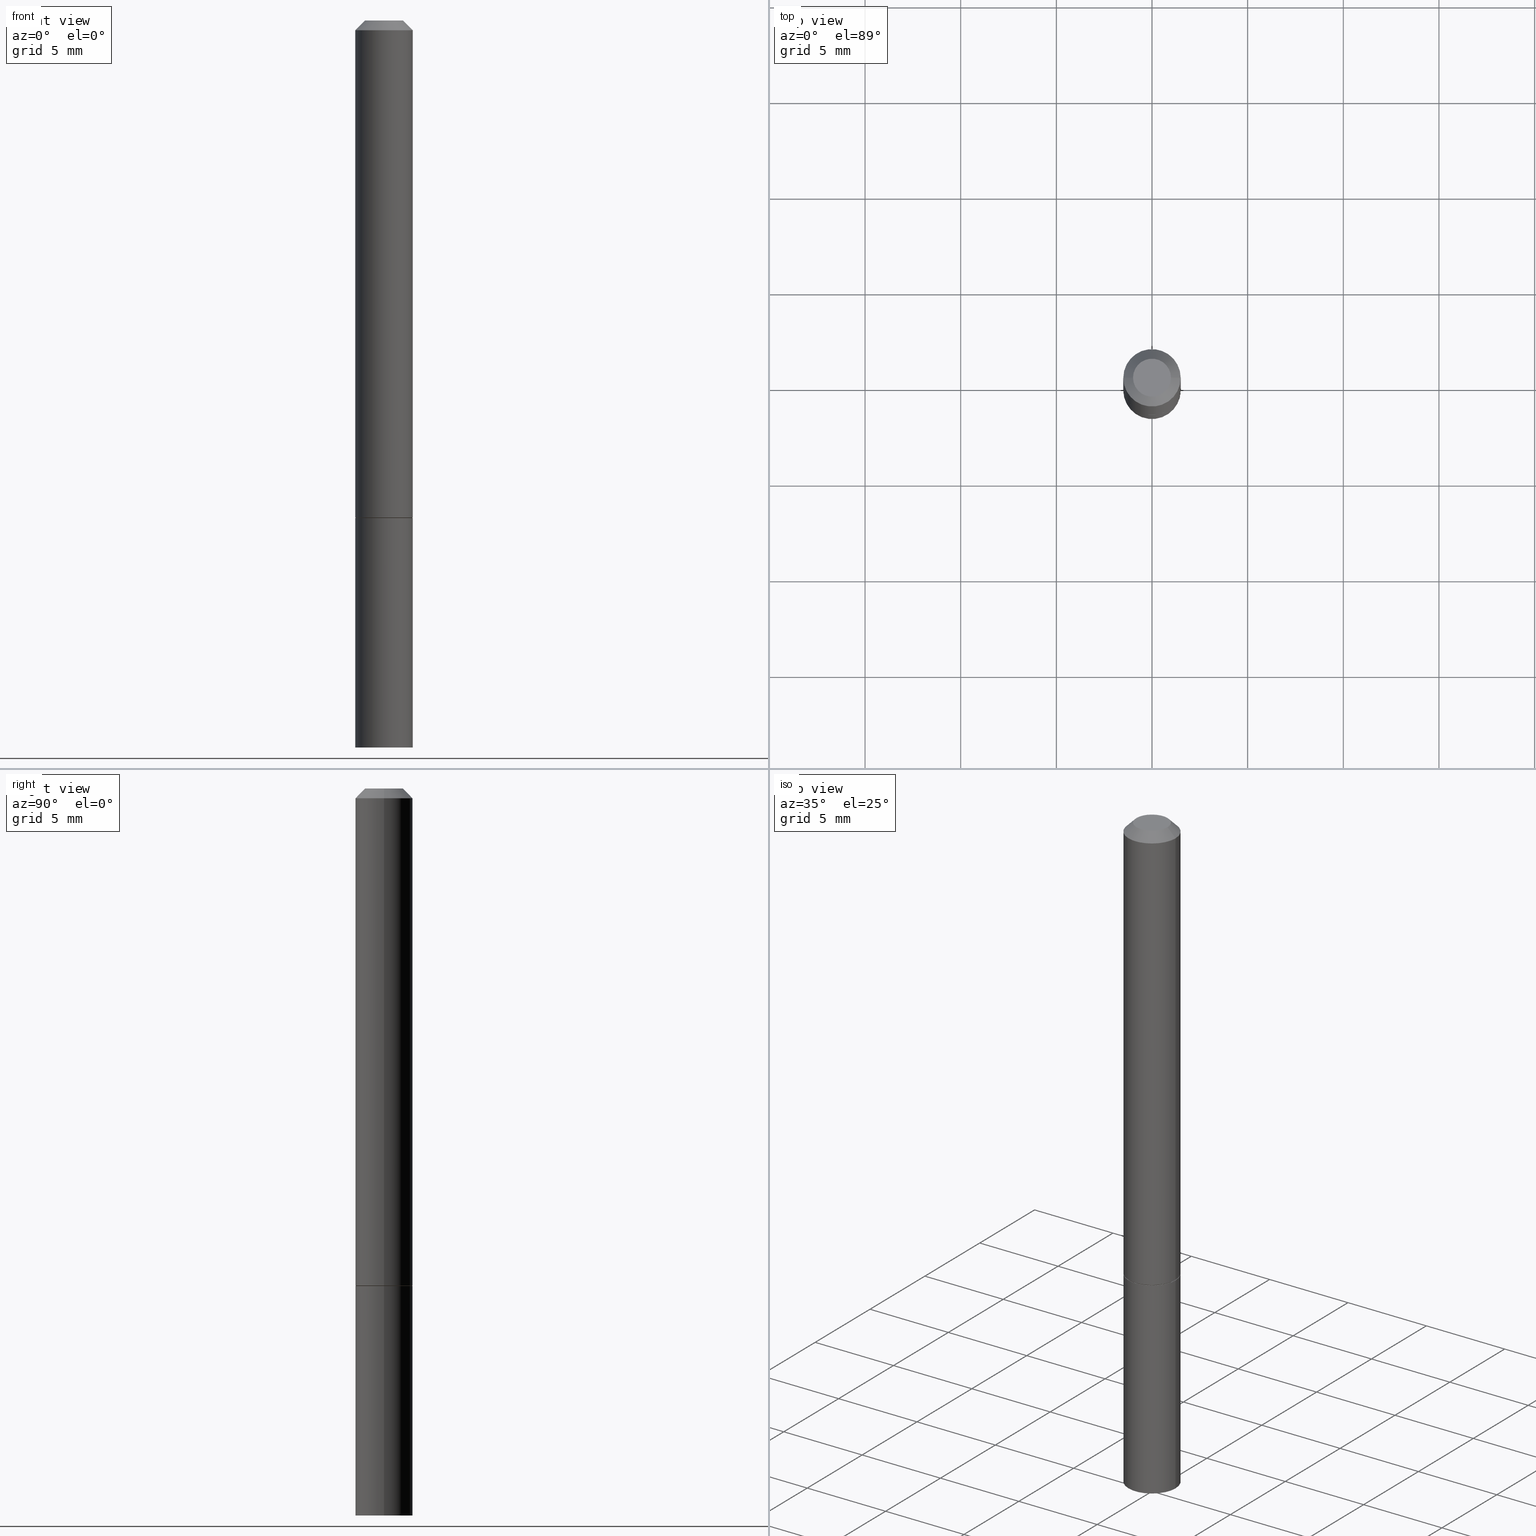
[diagram: canonical four-view strip — front | top / right | iso, engineering-drawing reading convention]
A machine part, canonical four-view strip (front | top / right | iso — engineering-drawing reading convention). The complete STEP part file that produces these views, byte-faithful:
ISO-10303-21;
HEADER;
FILE_DESCRIPTION (( 'STEP AP203' ),
    '1' );
FILE_NAME ('48632.STEP',
    '2024-02-28T12:39:26',
    ( '' ),
    ( '' ),
    'SwSTEP 2.0',
    'SolidWorks 2023',
    '' );
FILE_SCHEMA (( 'CONFIG_CONTROL_DESIGN' ));
ENDSEC;

DATA;
#1 = PERSON_AND_ORGANIZATION_ROLE ( 'creator' ) ;
#2 = CARTESIAN_POINT ( 'NONE',  ( 4.890937612370292426E-31, -6.982962677686317493E-17, -0.02000000000000007674 ) ) ;
#3 = CC_DESIGN_APPROVAL ( #173, ( #181 ) ) ;
#4 = FACE_OUTER_BOUND ( 'NONE', #196, .T. ) ;
#5 = CC_DESIGN_PERSON_AND_ORGANIZATION_ASSIGNMENT ( #338, #50, ( #136 ) ) ;
#6 = CARTESIAN_POINT ( 'NONE',  ( 2.503426416891723784E-29, -3.574229446573727613E-15, -1.023699999999999832 ) ) ;
#7 = CIRCLE ( 'NONE', #202, 0.05904999999999981097 ) ;
#8 = CARTESIAN_POINT ( 'NONE',  ( 2.503426416891723784E-29, -3.574229446573727613E-15, -1.023699999999999832 ) ) ;
#9 = ORIENTED_EDGE ( 'NONE', *, *, #68, .F. ) ;
#10 = DIRECTION ( 'NONE',  ( -2.438088387897960049E-29, 3.491481338843145188E-15, 1.000000000000000000 ) ) ;
#11 = VECTOR ( 'NONE', #103, 39.37007874015748143 ) ;
#12 = ORIENTED_EDGE ( 'NONE', *, *, #264, .T. ) ;
#13 = APPLICATION_PROTOCOL_DEFINITION ( 'international standard', 'config_control_design', 1994, #346 ) ;
#14 = ORIENTED_EDGE ( 'NONE', *, *, #39, .F. ) ;
#15 = CARTESIAN_POINT ( 'NONE',  ( 0.000000000000000000, 0.000000000000000000, 0.000000000000000000 ) ) ;
#16 = ADVANCED_BREP_SHAPE_REPRESENTATION ( '48632', ( #21, #137, #121 ), #222 ) ;
#17 = LENGTH_MEASURE_WITH_UNIT ( LENGTH_MEASURE( 0.02539999999999999897 ), #200 );
#18 = FACE_OUTER_BOUND ( 'NONE', #320, .T. ) ;
#19 = PERSON ( 'UNSPECIFIED', 'UNSPECIFIED', 'UNSPECIFIED', ('UNSPECIFIED'), ('UNSPECIFIED'), ('UNSPECIFIED') ) ;
#20 = CARTESIAN_POINT ( 'NONE',  ( 0.05805000000000001131, -3.979590430013415730E-15, -1.023699999999999832 ) ) ;
#21 = MANIFOLD_SOLID_BREP ( 'Body-Move/Copy2[1]', #114 ) ;
#22 = DATE_AND_TIME ( #75, #217 ) ;
#23 = CARTESIAN_POINT ( 'NONE',  ( 0.05905000000000001914, -5.635949177160603791E-15, -1.496099999999999985 ) ) ;
#24 = APPROVAL_DATE_TIME ( #28, #247 ) ;
#25 = DIRECTION ( 'NONE',  ( 2.445468806185136597E-29, -3.491481338843145583E-15, -1.000000000000000000 ) ) ;
#26 = AXIS2_PLACEMENT_3D ( 'NONE', #347, #57, #139 ) ;
#27 = FACE_OUTER_BOUND ( 'NONE', #172, .T. ) ;
#28 = DATE_AND_TIME ( #245, #153 ) ;
#29 = CARTESIAN_POINT ( 'NONE',  ( -0.03904999999999982097, 3.075995059520783951E-16, -5.549066237130737733E-17 ) ) ;
#30 = ADVANCED_FACE ( 'NONE', ( #239 ), #294, .T. ) ;
#31 = CARTESIAN_POINT ( 'NONE',  ( 2.503426416891723784E-29, -3.574229446573727613E-15, -1.023699999999999832 ) ) ;
#32 = CIRCLE ( 'NONE', #255, 0.05805000000000001131 ) ;
#33 = ADVANCED_FACE ( 'NONE', ( #48 ), #305, .T. ) ;
#34 = DIRECTION ( 'NONE',  ( -1.000000000000000000, 6.982962677686265922E-15, -4.876176775795935793E-29 ) ) ;
#35 = AXIS2_PLACEMENT_3D ( 'NONE', #192, #254, #312 ) ;
#36 = EDGE_LOOP ( 'NONE', ( #194, #64, #12, #92 ) ) ;
#37 =( CONVERSION_BASED_UNIT ( 'INCH', #17 ) LENGTH_UNIT ( ) NAMED_UNIT ( #278 ) );
#38 = ORIENTED_EDGE ( 'NONE', *, *, #129, .T. ) ;
#39 = EDGE_CURVE ( 'NONE', #353, #299, #7, .T. ) ;
#40 = VERTEX_POINT ( 'NONE', #118 ) ;
#41 = CARTESIAN_POINT ( 'NONE',  ( 0.05904999999999988036, -4.123439461173731945E-16, 2.879382386107493914E-30 ) ) ;
#42 = APPROVAL_PERSON_ORGANIZATION ( #259, #171, #66 ) ;
#43 = CARTESIAN_POINT ( 'NONE',  ( -0.05904999999999981097, 3.425143193405095019E-16, -0.02000000000000007674 ) ) ;
#44 = ORIENTED_EDGE ( 'NONE', *, *, #289, .T. ) ;
#45 = FACE_OUTER_BOUND ( 'NONE', #313, .T. ) ;
#46 = DIRECTION ( 'NONE',  ( 1.000000000000000000, -6.982962677686266711E-15, 4.876176775795935232E-29 ) ) ;
#47 = PERSON_AND_ORGANIZATION_ROLE ( 'design_supplier' ) ;
#48 = FACE_OUTER_BOUND ( 'NONE', #295, .T. ) ;
#49 = CARTESIAN_POINT ( 'NONE',  ( 2.503426416891723784E-29, -3.574229446573727613E-15, -1.023699999999999832 ) ) ;
#50 = PERSON_AND_ORGANIZATION_ROLE ( 'classification_officer' ) ;
#51 = CC_DESIGN_PERSON_AND_ORGANIZATION_ASSIGNMENT ( #100, #238, ( #241 ) ) ;
#52 = DIRECTION ( 'NONE',  ( 0.7071067811864992780, -2.468850131081751401E-15, 0.7071067811865957564 ) ) ;
#53 = DIRECTION ( 'NONE',  ( -0.7071067811864992780, 7.493145998870180611E-15, 0.7071067811865957564 ) ) ;
#54 = APPROVAL_DATE_TIME ( #215, #173 ) ;
#55 = CARTESIAN_POINT ( 'NONE',  ( 1.357006838635785746E-45, -1.937446121494581442E-31, -5.549066237130534971E-17 ) ) ;
#56 = FACE_OUTER_BOUND ( 'NONE', #185, .T. ) ;
#57 = DIRECTION ( 'NONE',  ( -2.445468806185136597E-29, 3.491481338843145583E-15, 1.000000000000000000 ) ) ;
#58 = AXIS2_PLACEMENT_3D ( 'NONE', #62, #284, #34 ) ;
#59 = VERTEX_POINT ( 'NONE', #23 ) ;
#60 = AXIS2_PLACEMENT_3D ( 'NONE', #8, #10, #226 ) ;
#61 = LOCAL_TIME ( 7, 39, 26.00000000000000000, #124 ) ;
#62 = CARTESIAN_POINT ( 'NONE',  ( 2.726846925636474363E-16, 0.03904999999999982097, -1.640876774674768860E-16 ) ) ;
#63 = VERTEX_POINT ( 'NONE', #272 ) ;
#64 = ORIENTED_EDGE ( 'NONE', *, *, #68, .T. ) ;
#65 = EDGE_LOOP ( 'NONE', ( #242, #87, #122, #237 ) ) ;
#66 = APPROVAL_ROLE ( '' ) ;
#67 = CIRCLE ( 'NONE', #279, 0.05904999999999981097 ) ;
#68 = EDGE_CURVE ( 'NONE', #63, #59, #331, .T. ) ;
#69 = VERTEX_POINT ( 'NONE', #20 ) ;
#70 = DIRECTION ( 'NONE',  ( 1.000000000000000000, -6.982962677686266711E-15, 4.876176775795935232E-29 ) ) ;
#71 = ORIENTED_EDGE ( 'NONE', *, *, #227, .T. ) ;
#72 = ORIENTED_EDGE ( 'NONE', *, *, #97, .F. ) ;
#73 = CIRCLE ( 'NONE', #127, 0.03904999999999982097 ) ;
#74 = CARTESIAN_POINT ( 'NONE',  ( 4.123439461173991776E-16, 0.05904999999999643867, -1.023700000000000054 ) ) ;
#75 = CALENDAR_DATE ( 2024, 28, 2 ) ;
#76 = VERTEX_POINT ( 'NONE', #269 ) ;
#77 = PERSON_AND_ORGANIZATION ( #19, #356 ) ;
#78 = CARTESIAN_POINT ( 'NONE',  ( 2.500980948085538461E-29, -3.570737965234883817E-15, -1.022699999999999720 ) ) ;
#79 = AXIS2_PLACEMENT_3D ( 'NONE', #6, #225, #246 ) ;
#80 = DIRECTION ( 'NONE',  ( 1.000000000000000000, -6.982962677686270655E-15, 0.000000000000000000 ) ) ;
#81 = DIRECTION ( 'NONE',  ( -1.000000000000000000, 6.982962677686265922E-15, 0.000000000000000000 ) ) ;
#82 = DIRECTION ( 'NONE',  ( -2.445468806185136877E-29, 3.491481338843145188E-15, 1.000000000000000000 ) ) ;
#83 = AXIS2_PLACEMENT_3D ( 'NONE', #74, #183, #325 ) ;
#84 = CC_DESIGN_APPROVAL ( #247, ( #136 ) ) ;
#85 = EDGE_LOOP ( 'NONE', ( #149, #262, #267, #257 ) ) ;
#86 = CARTESIAN_POINT ( 'NONE',  ( 2.500980948085538461E-29, -3.570737965234883817E-15, -1.022699999999999720 ) ) ;
#87 = ORIENTED_EDGE ( 'NONE', *, *, #168, .T. ) ;
#88 = AXIS2_PLACEMENT_3D ( 'NONE', #49, #152, #234 ) ;
#89 = CARTESIAN_POINT ( 'NONE',  ( 1.357006838635785746E-45, -1.937446121494581442E-31, -5.549066237130534971E-17 ) ) ;
#90 = ORIENTED_EDGE ( 'NONE', *, *, #264, .F. ) ;
#91 = DIRECTION ( 'NONE',  ( -2.445468806185136597E-29, 3.491481338843145583E-15, 1.000000000000000000 ) ) ;
#92 = ORIENTED_EDGE ( 'NONE', *, *, #282, .F. ) ;
#93 = DIRECTION ( 'NONE',  ( -2.445468806185136597E-29, 3.491481338843145583E-15, 1.000000000000000000 ) ) ;
#94 = EDGE_LOOP ( 'NONE', ( #116, #125 ) ) ;
#95 = CARTESIAN_POINT ( 'NONE',  ( 0.05904999999999981097, -4.749420335452707859E-16, -0.02000000000000007674 ) ) ;
#96 = ORIENTED_EDGE ( 'NONE', *, *, #343, .T. ) ;
#97 = EDGE_CURVE ( 'NONE', #358, #69, #221, .T. ) ;
#98 = ORIENTED_EDGE ( 'NONE', *, *, #243, .T. ) ;
#99 = ADVANCED_FACE ( 'NONE', ( #18 ), #355, .F. ) ;
#100 = PERSON_AND_ORGANIZATION ( #19, #356 ) ;
#101 = AXIS2_PLACEMENT_3D ( 'NONE', #232, #366, #105 ) ;
#102 = CARTESIAN_POINT ( 'NONE',  ( -0.05904999999999981097, 3.425143193405095019E-16, -0.02000000000000007674 ) ) ;
#103 = DIRECTION ( 'NONE',  ( -2.445468806185136877E-29, 3.491481338843145188E-15, 1.000000000000000000 ) ) ;
#104 = DATE_AND_TIME ( #271, #197 ) ;
#105 = DIRECTION ( 'NONE',  ( 1.000000000000000000, -6.982962677686270655E-15, 0.000000000000000000 ) ) ;
#106 = COORDINATED_UNIVERSAL_TIME_OFFSET ( 5, 0, .BEHIND. ) ;
#107 = CLOSED_SHELL ( 'NONE', ( #148, #33, #236, #273, #317, #30, #328, #160 ) ) ;
#108 = CARTESIAN_POINT ( 'NONE',  ( -0.05805000000000001131, -3.161759388464989128E-15, -1.023699999999999832 ) ) ;
#109 = LINE ( 'NONE', #128, #322 ) ;
#110 = AXIS2_PLACEMENT_3D ( 'NONE', #169, #158, #220 ) ;
#111 = ORIENTED_EDGE ( 'NONE', *, *, #343, .F. ) ;
#112 = LINE ( 'NONE', #248, #11 ) ;
#113 = ORIENTED_EDGE ( 'NONE', *, *, #199, .T. ) ;
#114 = CLOSED_SHELL ( 'NONE', ( #336, #212, #99, #206 ) ) ;
#115 = CARTESIAN_POINT ( 'NONE',  ( 3.658665880933582389E-29, -5.223605231043229660E-15, -1.496099999999999985 ) ) ;
#116 = ORIENTED_EDGE ( 'NONE', *, *, #302, .T. ) ;
#117 = DIRECTION ( 'NONE',  ( 1.000000000000000000, -6.982962677686266711E-15, 4.876176775795935793E-29 ) ) ;
#118 = CARTESIAN_POINT ( 'NONE',  ( 0.03904999999999982097, -3.714222401791240519E-16, -5.549066237130309406E-17 ) ) ;
#119 = DIRECTION ( 'NONE',  ( 1.000000000000000000, -6.982962677686270655E-15, 0.000000000000000000 ) ) ;
#120 =( NAMED_UNIT ( * ) SI_UNIT ( $, .STERADIAN. ) SOLID_ANGLE_UNIT ( ) );
#121 = AXIS2_PLACEMENT_3D ( 'NONE', #357, #352, #326 ) ;
#122 = ORIENTED_EDGE ( 'NONE', *, *, #199, .F. ) ;
#123 = ORIENTED_EDGE ( 'NONE', *, *, #224, .T. ) ;
#124 = COORDINATED_UNIVERSAL_TIME_OFFSET ( 5, 0, .BEHIND. ) ;
#125 = ORIENTED_EDGE ( 'NONE', *, *, #218, .T. ) ;
#126 = COORDINATED_UNIVERSAL_TIME_OFFSET ( 5, 0, .BEHIND. ) ;
#127 = AXIS2_PLACEMENT_3D ( 'NONE', #55, #281, #133 ) ;
#128 = CARTESIAN_POINT ( 'NONE',  ( 0.05905000000000001914, -4.123439461173741806E-16, 2.879382386107500921E-30 ) ) ;
#129 = EDGE_CURVE ( 'NONE', #166, #353, #303, .T. ) ;
#130 = PERSON_AND_ORGANIZATION ( #19, #356 ) ;
#131 = LINE ( 'NONE', #108, #270 ) ;
#132 = EDGE_CURVE ( 'NONE', #69, #292, #274, .T. ) ;
#133 = DIRECTION ( 'NONE',  ( 1.000000000000000000, -6.982962677686265922E-15, 4.873707401586885104E-29 ) ) ;
#134 = VECTOR ( 'NONE', #162, 39.37007874015748143 ) ;
#135 = DIRECTION ( 'NONE',  ( -2.445468806185136597E-29, 3.491481338843145583E-15, 1.000000000000000000 ) ) ;
#136 = SECURITY_CLASSIFICATION ( '', '', #156 ) ;
#137 = MANIFOLD_SOLID_BREP ( 'Body-Move/Copy2[2]', #107 ) ;
#138 = CC_DESIGN_PERSON_AND_ORGANIZATION_ASSIGNMENT ( #141, #290, ( #182 ) ) ;
#139 = DIRECTION ( 'NONE',  ( 1.000000000000000000, -6.982962677686266711E-15, 4.876176775795935793E-29 ) ) ;
#140 = CONICAL_SURFACE ( 'NONE', #35, 0.05904999999999981097, 0.7853981633974476129 ) ;
#141 = PERSON_AND_ORGANIZATION ( #19, #356 ) ;
#142 = CONICAL_SURFACE ( 'NONE', #180, 0.05904999999999981097, 0.7853981633974476129 ) ;
#143 = CARTESIAN_POINT ( 'NONE',  ( 0.000000000000000000, 0.000000000000000000, 0.000000000000000000 ) ) ;
#144 = PRODUCT_RELATED_PRODUCT_CATEGORY ( 'detail', '', ( #182 ) ) ;
#145 = ORIENTED_EDGE ( 'NONE', *, *, #179, .T. ) ;
#146 = ORIENTED_EDGE ( 'NONE', *, *, #39, .T. ) ;
#147 = AXIS2_PLACEMENT_3D ( 'NONE', #233, #268, #70 ) ;
#148 = ADVANCED_FACE ( 'NONE', ( #277 ), #161, .T. ) ;
#149 = ORIENTED_EDGE ( 'NONE', *, *, #168, .F. ) ;
#150 = ORIENTED_EDGE ( 'NONE', *, *, #282, .T. ) ;
#151 = APPROVAL_ROLE ( '' ) ;
#152 = DIRECTION ( 'NONE',  ( -2.445468806185136597E-29, 3.491481338843145583E-15, 1.000000000000000000 ) ) ;
#153 = LOCAL_TIME ( 7, 39, 26.00000000000000000, #275 ) ;
#154 = PRODUCT_DEFINITION_SHAPE ( 'NONE', 'NONE',  #241 ) ;
#155 = CARTESIAN_POINT ( 'NONE',  ( -0.05904999999999994975, -1.400708310539532881E-15, -1.022699999999999720 ) ) ;
#156 = SECURITY_CLASSIFICATION_LEVEL ( 'unclassified' ) ;
#157 = DIRECTION ( 'NONE',  ( 1.000000000000000000, -6.982962677686265922E-15, 0.000000000000000000 ) ) ;
#158 = DIRECTION ( 'NONE',  ( -2.445468806185136597E-29, 3.491481338843145583E-15, 1.000000000000000000 ) ) ;
#159 = EDGE_CURVE ( 'NONE', #63, #76, #112, .T. ) ;
#160 = ADVANCED_FACE ( 'NONE', ( #191 ), #195, .F. ) ;
#161 = CONICAL_SURFACE ( 'NONE', #101, 0.05805000000000001131, 0.7853981633973801113 ) ;
#162 = DIRECTION ( 'NONE',  ( -2.445468806185136877E-29, 3.491481338843145188E-15, 1.000000000000000000 ) ) ;
#163 = AXIS2_PLACEMENT_3D ( 'NONE', #115, #91, #176 ) ;
#164 = CC_DESIGN_PERSON_AND_ORGANIZATION_ASSIGNMENT ( #210, #47, ( #181 ) ) ;
#165 = AXIS2_PLACEMENT_3D ( 'NONE', #89, #298, #231 ) ;
#166 = VERTEX_POINT ( 'NONE', #29 ) ;
#167 = APPROVAL_PERSON_ORGANIZATION ( #335, #173, #240 ) ;
#168 = EDGE_CURVE ( 'NONE', #358, #258, #131, .T. ) ;
#169 = CARTESIAN_POINT ( 'NONE',  ( 2.503426416891723784E-29, -3.574229446573727613E-15, -1.023699999999999832 ) ) ;
#170 =( NAMED_UNIT ( * ) PLANE_ANGLE_UNIT ( ) SI_UNIT ( $, .RADIAN. ) );
#171 = APPROVAL ( #321, 'UNSPECIFIED' ) ;
#172 = EDGE_LOOP ( 'NONE', ( #300, #229, #38, #146 ) ) ;
#173 = APPROVAL ( #186, 'UNSPECIFIED' ) ;
#174 = COORDINATED_UNIVERSAL_TIME_OFFSET ( 5, 0, .BEHIND. ) ;
#175 = ORIENTED_EDGE ( 'NONE', *, *, #289, .F. ) ;
#176 = DIRECTION ( 'NONE',  ( 1.000000000000000000, -6.982962677686270655E-15, 0.000000000000000000 ) ) ;
#177 = DIRECTION ( 'NONE',  ( -0.7071067811865469066, 2.468850131082251144E-15, -0.7071067811865479058 ) ) ;
#178 = DIRECTION ( 'NONE',  ( -2.445468806185136597E-29, 3.491481338843145583E-15, 1.000000000000000000 ) ) ;
#179 = EDGE_CURVE ( 'NONE', #40, #299, #213, .T. ) ;
#180 = AXIS2_PLACEMENT_3D ( 'NONE', #2, #25, #81 ) ;
#181 = PRODUCT_DEFINITION_FORMATION_WITH_SPECIFIED_SOURCE ( 'ANY', '', #182, .NOT_KNOWN. ) ;
#182 = PRODUCT ( '48632', '48632', '', ( #319 ) ) ;
#183 = DIRECTION ( 'NONE',  ( 2.438088387897960049E-29, -3.491481338843145188E-15, -1.000000000000000000 ) ) ;
#184 = APPROVAL_STATUS ( 'not_yet_approved' ) ;
#185 = EDGE_LOOP ( 'NONE', ( #285, #145, #71, #211 ) ) ;
#186 = APPROVAL_STATUS ( 'not_yet_approved' ) ;
#187 = PLANE ( 'NONE',  #216 ) ;
#188 = AXIS2_PLACEMENT_3D ( 'NONE', #78, #214, #283 ) ;
#189 = LOCAL_TIME ( 7, 39, 26.00000000000000000, #126 ) ;
#190 = CARTESIAN_POINT ( 'NONE',  ( 4.123439461174106654E-16, 0.05904999999999479415, -1.496100000000000207 ) ) ;
#191 = FACE_OUTER_BOUND ( 'NONE', #94, .T. ) ;
#192 = CARTESIAN_POINT ( 'NONE',  ( 4.890937612370292426E-31, -6.982962677686317493E-17, -0.02000000000000007674 ) ) ;
#193 = EDGE_CURVE ( 'NONE', #258, #292, #301, .T. ) ;
#194 = ORIENTED_EDGE ( 'NONE', *, *, #159, .F. ) ;
#195 = PLANE ( 'NONE',  #58 ) ;
#196 = EDGE_LOOP ( 'NONE', ( #111, #9 ) ) ;
#197 = LOCAL_TIME ( 7, 39, 26.00000000000000000, #106 ) ;
#198 = FACE_OUTER_BOUND ( 'NONE', #207, .T. ) ;
#199 = EDGE_CURVE ( 'NONE', #292, #258, #235, .T. ) ;
#200 =( LENGTH_UNIT ( ) NAMED_UNIT ( * ) SI_UNIT ( $, .METRE. ) );
#201 = CARTESIAN_POINT ( 'NONE',  ( 2.503426416891723784E-29, -3.574229446573727613E-15, -1.023699999999999832 ) ) ;
#202 = AXIS2_PLACEMENT_3D ( 'NONE', #208, #362, #330 ) ;
#203 = CARTESIAN_POINT ( 'NONE',  ( 0.05904999999999994975, -3.983081911352257948E-15, -1.022699999999999720 ) ) ;
#204 = CARTESIAN_POINT ( 'NONE',  ( 3.658665880933582389E-29, -5.223605231043229660E-15, -1.496099999999999985 ) ) ;
#205 = CYLINDRICAL_SURFACE ( 'NONE', #256, 0.05905000000000001914 ) ;
#206 = ADVANCED_FACE ( 'NONE', ( #311 ), #341, .T. ) ;
#207 = EDGE_LOOP ( 'NONE', ( #263, #288, #44, #14 ) ) ;
#208 = CARTESIAN_POINT ( 'NONE',  ( 4.890937612370292426E-31, -6.982962677686317493E-17, -0.02000000000000007674 ) ) ;
#209 = VECTOR ( 'NONE', #52, 39.37007874015748143 ) ;
#210 = PERSON_AND_ORGANIZATION ( #19, #356 ) ;
#211 = ORIENTED_EDGE ( 'NONE', *, *, #129, .F. ) ;
#212 = ADVANCED_FACE ( 'NONE', ( #4 ), #187, .T. ) ;
#213 = LINE ( 'NONE', #337, #244 ) ;
#214 = DIRECTION ( 'NONE',  ( -2.445468806185136597E-29, 3.491481338843145583E-15, 1.000000000000000000 ) ) ;
#215 = DATE_AND_TIME ( #329, #189 ) ;
#216 = AXIS2_PLACEMENT_3D ( 'NONE', #190, #280, #310 ) ;
#217 = LOCAL_TIME ( 7, 39, 26.00000000000000000, #174 ) ;
#218 = EDGE_CURVE ( 'NONE', #40, #166, #73, .T. ) ;
#219 = DIRECTION ( 'NONE',  ( -2.445468806185136597E-29, 3.491481338843145583E-15, 1.000000000000000000 ) ) ;
#220 = DIRECTION ( 'NONE',  ( 1.000000000000000000, -6.982962677686262766E-15, 0.000000000000000000 ) ) ;
#221 = CIRCLE ( 'NONE', #88, 0.05805000000000001131 ) ;
#222 =( GEOMETRIC_REPRESENTATION_CONTEXT ( 3 ) GLOBAL_UNCERTAINTY_ASSIGNED_CONTEXT ( ( #286 ) ) GLOBAL_UNIT_ASSIGNED_CONTEXT ( ( #37, #170, #120 ) ) REPRESENTATION_CONTEXT ( 'NONE', 'WORKASPACE' ) );
#223 = ORIENTED_EDGE ( 'NONE', *, *, #252, .F. ) ;
#224 = EDGE_CURVE ( 'NONE', #258, #353, #342, .T. ) ;
#225 = DIRECTION ( 'NONE',  ( -2.445468806185136597E-29, 3.491481338843145583E-15, 1.000000000000000000 ) ) ;
#226 = DIRECTION ( 'NONE',  ( 1.000000000000000000, -6.982962677686265922E-15, 4.876176775795935793E-29 ) ) ;
#227 = EDGE_CURVE ( 'NONE', #299, #353, #67, .T. ) ;
#228 = AXIS2_PLACEMENT_3D ( 'NONE', #86, #339, #80 ) ;
#229 = ORIENTED_EDGE ( 'NONE', *, *, #302, .F. ) ;
#230 = CC_DESIGN_APPROVAL ( #171, ( #241 ) ) ;
#231 = DIRECTION ( 'NONE',  ( 1.000000000000000000, -6.982962677686265922E-15, 4.873707401586885104E-29 ) ) ;
#232 = CARTESIAN_POINT ( 'NONE',  ( 2.503426416891723784E-29, -3.574229446573727613E-15, -1.023699999999999832 ) ) ;
#233 = CARTESIAN_POINT ( 'NONE',  ( 0.000000000000000000, 0.000000000000000000, 0.000000000000000000 ) ) ;
#234 = DIRECTION ( 'NONE',  ( 1.000000000000000000, -6.982962677686270655E-15, 0.000000000000000000 ) ) ;
#235 = CIRCLE ( 'NONE', #228, 0.05904999999999994975 ) ;
#236 = ADVANCED_FACE ( 'NONE', ( #56 ), #142, .T. ) ;
#237 = ORIENTED_EDGE ( 'NONE', *, *, #132, .F. ) ;
#238 = PERSON_AND_ORGANIZATION_ROLE ( 'creator' ) ;
#239 = FACE_OUTER_BOUND ( 'NONE', #85, .T. ) ;
#240 = APPROVAL_ROLE ( '' ) ;
#241 = PRODUCT_DEFINITION ( 'UNKNOWN', '', #181, #334 ) ;
#242 = ORIENTED_EDGE ( 'NONE', *, *, #252, .T. ) ;
#243 = EDGE_CURVE ( 'NONE', #323, #76, #363, .T. ) ;
#244 = VECTOR ( 'NONE', #314, 39.37007874015748854 ) ;
#245 = CALENDAR_DATE ( 2024, 28, 2 ) ;
#246 = DIRECTION ( 'NONE',  ( 1.000000000000000000, -6.982962677686262766E-15, 0.000000000000000000 ) ) ;
#247 = APPROVAL ( #184, 'UNSPECIFIED' ) ;
#248 = CARTESIAN_POINT ( 'NONE',  ( -0.05905000000000001914, 4.195754854663392958E-16, -2.904631170795522943E-30 ) ) ;
#249 = CARTESIAN_POINT ( 'NONE',  ( -0.05904999999999988036, 4.195754854663383097E-16, -2.904631170795515936E-30 ) ) ;
#250 = CIRCLE ( 'NONE', #163, 0.05905000000000001914 ) ;
#251 = APPROVAL_PERSON_ORGANIZATION ( #77, #247, #151 ) ;
#252 = EDGE_CURVE ( 'NONE', #69, #358, #32, .T. ) ;
#253 = DIRECTION ( 'NONE',  ( 1.000000000000000000, -6.982962677686270655E-15, 0.000000000000000000 ) ) ;
#254 = DIRECTION ( 'NONE',  ( 2.445468806185136597E-29, -3.491481338843145583E-15, -1.000000000000000000 ) ) ;
#255 = AXIS2_PLACEMENT_3D ( 'NONE', #31, #135, #253 ) ;
#256 = AXIS2_PLACEMENT_3D ( 'NONE', #143, #93, #117 ) ;
#257 = ORIENTED_EDGE ( 'NONE', *, *, #193, .F. ) ;
#258 = VERTEX_POINT ( 'NONE', #155 ) ;
#259 = PERSON_AND_ORGANIZATION ( #19, #356 ) ;
#260 = ORIENTED_EDGE ( 'NONE', *, *, #243, .F. ) ;
#261 = CYLINDRICAL_SURFACE ( 'NONE', #147, 0.05904999999999988036 ) ;
#262 = ORIENTED_EDGE ( 'NONE', *, *, #97, .T. ) ;
#263 = ORIENTED_EDGE ( 'NONE', *, *, #224, .F. ) ;
#264 = EDGE_CURVE ( 'NONE', #59, #323, #109, .T. ) ;
#265 = CARTESIAN_POINT ( 'NONE',  ( -0.05805000000000001131, -3.156460934116767120E-15, -1.023699999999999832 ) ) ;
#266 = APPLICATION_CONTEXT ( 'configuration controlled 3d designs of mechanical parts and assemblies' ) ;
#267 = ORIENTED_EDGE ( 'NONE', *, *, #132, .T. ) ;
#268 = DIRECTION ( 'NONE',  ( -2.445468806185136597E-29, 3.491481338843145583E-15, 1.000000000000000000 ) ) ;
#269 = CARTESIAN_POINT ( 'NONE',  ( -0.05905000000000001914, -3.979341853342139538E-15, -1.023699999999999832 ) ) ;
#270 = VECTOR ( 'NONE', #53, 39.37007874015748143 ) ;
#271 = CALENDAR_DATE ( 2024, 28, 2 ) ;
#272 = CARTESIAN_POINT ( 'NONE',  ( -0.05905000000000001914, -3.979341853342139538E-15, -1.496099999999999985 ) ) ;
#273 = ADVANCED_FACE ( 'NONE', ( #27 ), #140, .T. ) ;
#274 = LINE ( 'NONE', #333, #209 ) ;
#275 = COORDINATED_UNIVERSAL_TIME_OFFSET ( 5, 0, .BEHIND. ) ;
#276 = CC_DESIGN_PERSON_AND_ORGANIZATION_ASSIGNMENT ( #130, #1, ( #181 ) ) ;
#277 = FACE_OUTER_BOUND ( 'NONE', #65, .T. ) ;
#278 = DIMENSIONAL_EXPONENTS ( 1.000000000000000000, 0.000000000000000000, 0.000000000000000000, 0.000000000000000000, 0.000000000000000000, 0.000000000000000000, 0.000000000000000000 ) ;
#279 = AXIS2_PLACEMENT_3D ( 'NONE', #307, #219, #157 ) ;
#280 = DIRECTION ( 'NONE',  ( 2.438088387897960049E-29, -3.491481338843145188E-15, -1.000000000000000000 ) ) ;
#281 = DIRECTION ( 'NONE',  ( -2.445468806185136597E-29, 3.491481338843145583E-15, 1.000000000000000000 ) ) ;
#282 = EDGE_CURVE ( 'NONE', #76, #323, #354, .T. ) ;
#283 = DIRECTION ( 'NONE',  ( 1.000000000000000000, -6.982962677686270655E-15, 0.000000000000000000 ) ) ;
#284 = DIRECTION ( 'NONE',  ( 2.438088387897960049E-29, -3.491481338843145188E-15, -1.000000000000000000 ) ) ;
#285 = ORIENTED_EDGE ( 'NONE', *, *, #218, .F. ) ;
#286 = UNCERTAINTY_MEASURE_WITH_UNIT (LENGTH_MEASURE( 1.000000000000000082E-05 ), #37, 'distance_accuracy_value', 'NONE');
#287 = VECTOR ( 'NONE', #318, 39.37007874015748143 ) ;
#288 = ORIENTED_EDGE ( 'NONE', *, *, #193, .T. ) ;
#289 = EDGE_CURVE ( 'NONE', #292, #299, #296, .T. ) ;
#290 = PERSON_AND_ORGANIZATION_ROLE ( 'design_owner' ) ;
#291 = FACE_OUTER_BOUND ( 'NONE', #316, .T. ) ;
#292 = VERTEX_POINT ( 'NONE', #203 ) ;
#293 = APPLICATION_PROTOCOL_DEFINITION ( 'international standard', 'config_control_design', 1994, #266 ) ;
#294 = CONICAL_SURFACE ( 'NONE', #349, 0.05805000000000001131, 0.7853981633973801113 ) ;
#295 = EDGE_LOOP ( 'NONE', ( #113, #123, #345, #175 ) ) ;
#296 = LINE ( 'NONE', #41, #287 ) ;
#297 = DIRECTION ( 'NONE',  ( -2.445468806185136597E-29, 3.491481338843145583E-15, 1.000000000000000000 ) ) ;
#298 = DIRECTION ( 'NONE',  ( -2.445468806185136597E-29, 3.491481338843145583E-15, 1.000000000000000000 ) ) ;
#299 = VERTEX_POINT ( 'NONE', #95 ) ;
#300 = ORIENTED_EDGE ( 'NONE', *, *, #179, .F. ) ;
#301 = CIRCLE ( 'NONE', #188, 0.05904999999999994975 ) ;
#302 = EDGE_CURVE ( 'NONE', #166, #40, #340, .T. ) ;
#303 = LINE ( 'NONE', #102, #344 ) ;
#304 = CC_DESIGN_DATE_AND_TIME_ASSIGNMENT ( #104, #306, ( #136 ) ) ;
#305 = CYLINDRICAL_SURFACE ( 'NONE', #315, 0.05904999999999988036 ) ;
#306 = DATE_TIME_ROLE ( 'classification_date' ) ;
#307 = CARTESIAN_POINT ( 'NONE',  ( 4.890937612370292426E-31, -6.982962677686317493E-17, -0.02000000000000007674 ) ) ;
#308 = AXIS2_PLACEMENT_3D ( 'NONE', #204, #178, #119 ) ;
#309 = APPROVAL_DATE_TIME ( #22, #171 ) ;
#310 = DIRECTION ( 'NONE',  ( -1.000000000000000000, 6.982962677686265922E-15, -4.876176775795935793E-29 ) ) ;
#311 = FACE_OUTER_BOUND ( 'NONE', #36, .T. ) ;
#312 = DIRECTION ( 'NONE',  ( -1.000000000000000000, 6.982962677686265922E-15, 0.000000000000000000 ) ) ;
#313 = EDGE_LOOP ( 'NONE', ( #223, #72 ) ) ;
#314 = DIRECTION ( 'NONE',  ( 0.7071067811865469066, -7.319954787623252890E-15, -0.7071067811865479058 ) ) ;
#315 = AXIS2_PLACEMENT_3D ( 'NONE', #15, #360, #46 ) ;
#316 = EDGE_LOOP ( 'NONE', ( #96, #348, #260, #90 ) ) ;
#317 = ADVANCED_FACE ( 'NONE', ( #198 ), #261, .T. ) ;
#318 = DIRECTION ( 'NONE',  ( -2.445468806185136877E-29, 3.491481338843145188E-15, 1.000000000000000000 ) ) ;
#319 = MECHANICAL_CONTEXT ( 'NONE', #266, 'mechanical' ) ;
#320 = EDGE_LOOP ( 'NONE', ( #98, #150 ) ) ;
#321 = APPROVAL_STATUS ( 'not_yet_approved' ) ;
#322 = VECTOR ( 'NONE', #82, 39.37007874015748143 ) ;
#323 = VERTEX_POINT ( 'NONE', #324 ) ;
#324 = CARTESIAN_POINT ( 'NONE',  ( 0.05905000000000001914, -3.986573392691101744E-15, -1.023699999999999832 ) ) ;
#325 = DIRECTION ( 'NONE',  ( -1.000000000000000000, 6.982962677686265922E-15, -4.876176775795935793E-29 ) ) ;
#326 = DIRECTION ( 'NONE',  ( 1.000000000000000000, 0.000000000000000000, 0.000000000000000000 ) ) ;
#327 = DIRECTION ( 'NONE',  ( 1.000000000000000000, -6.982962677686270655E-15, 0.000000000000000000 ) ) ;
#328 = ADVANCED_FACE ( 'NONE', ( #45 ), #350, .F. ) ;
#329 = CALENDAR_DATE ( 2024, 28, 2 ) ;
#330 = DIRECTION ( 'NONE',  ( 1.000000000000000000, -6.982962677686265922E-15, 0.000000000000000000 ) ) ;
#331 = CIRCLE ( 'NONE', #308, 0.05905000000000001914 ) ;
#332 = CC_DESIGN_SECURITY_CLASSIFICATION ( #136, ( #181 ) ) ;
#333 = CARTESIAN_POINT ( 'NONE',  ( 0.05805000000000001131, -3.979590430013415730E-15, -1.023699999999999832 ) ) ;
#334 = DESIGN_CONTEXT ( 'detailed design', #346, 'design' ) ;
#335 = PERSON_AND_ORGANIZATION ( #19, #356 ) ;
#336 = ADVANCED_FACE ( 'NONE', ( #291 ), #205, .T. ) ;
#337 = CARTESIAN_POINT ( 'NONE',  ( 0.05904999999999981097, -4.749420335452707859E-16, -0.02000000000000007674 ) ) ;
#338 = PERSON_AND_ORGANIZATION ( #19, #356 ) ;
#339 = DIRECTION ( 'NONE',  ( -2.445468806185136597E-29, 3.491481338843145583E-15, 1.000000000000000000 ) ) ;
#340 = CIRCLE ( 'NONE', #165, 0.03904999999999982097 ) ;
#341 = CYLINDRICAL_SURFACE ( 'NONE', #26, 0.05905000000000001914 ) ;
#342 = LINE ( 'NONE', #249, #134 ) ;
#343 = EDGE_CURVE ( 'NONE', #59, #63, #250, .T. ) ;
#344 = VECTOR ( 'NONE', #177, 39.37007874015748854 ) ;
#345 = ORIENTED_EDGE ( 'NONE', *, *, #227, .F. ) ;
#346 = APPLICATION_CONTEXT ( 'configuration controlled 3d designs of mechanical parts and assemblies' ) ;
#347 = CARTESIAN_POINT ( 'NONE',  ( 0.000000000000000000, 0.000000000000000000, 0.000000000000000000 ) ) ;
#348 = ORIENTED_EDGE ( 'NONE', *, *, #159, .T. ) ;
#349 = AXIS2_PLACEMENT_3D ( 'NONE', #201, #297, #327 ) ;
#350 = PLANE ( 'NONE',  #60 ) ;
#351 = CC_DESIGN_DATE_AND_TIME_ASSIGNMENT ( #361, #365, ( #241 ) ) ;
#352 = DIRECTION ( 'NONE',  ( 0.000000000000000000, 0.000000000000000000, 1.000000000000000000 ) ) ;
#353 = VERTEX_POINT ( 'NONE', #43 ) ;
#354 = CIRCLE ( 'NONE', #79, 0.05905000000000001914 ) ;
#355 = PLANE ( 'NONE',  #83 ) ;
#356 = ORGANIZATION ( 'UNSPECIFIED', 'UNSPECIFIED', '' ) ;
#357 = CARTESIAN_POINT ( 'NONE',  ( 0.000000000000000000, 0.000000000000000000, 0.000000000000000000 ) ) ;
#358 = VERTEX_POINT ( 'NONE', #265 ) ;
#359 = CALENDAR_DATE ( 2024, 28, 2 ) ;
#360 = DIRECTION ( 'NONE',  ( -2.445468806185136597E-29, 3.491481338843145583E-15, 1.000000000000000000 ) ) ;
#361 = DATE_AND_TIME ( #359, #61 ) ;
#362 = DIRECTION ( 'NONE',  ( -2.445468806185136597E-29, 3.491481338843145583E-15, 1.000000000000000000 ) ) ;
#363 = CIRCLE ( 'NONE', #110, 0.05905000000000001914 ) ;
#364 = SHAPE_DEFINITION_REPRESENTATION ( #154, #16 ) ;
#365 = DATE_TIME_ROLE ( 'creation_date' ) ;
#366 = DIRECTION ( 'NONE',  ( -2.445468806185136597E-29, 3.491481338843145583E-15, 1.000000000000000000 ) ) ;
ENDSEC;
END-ISO-10303-21;
